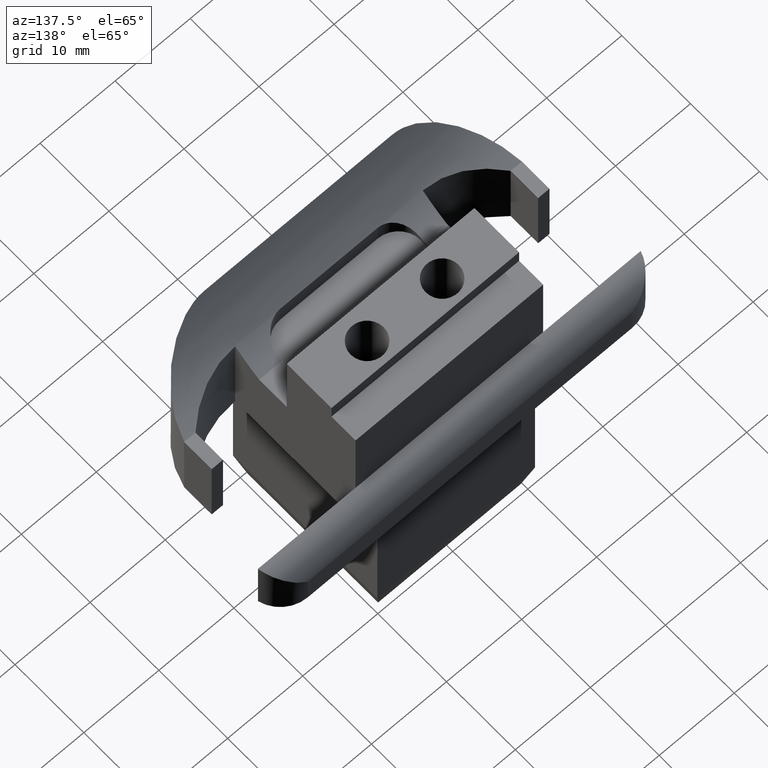
[diagram: clean part render]
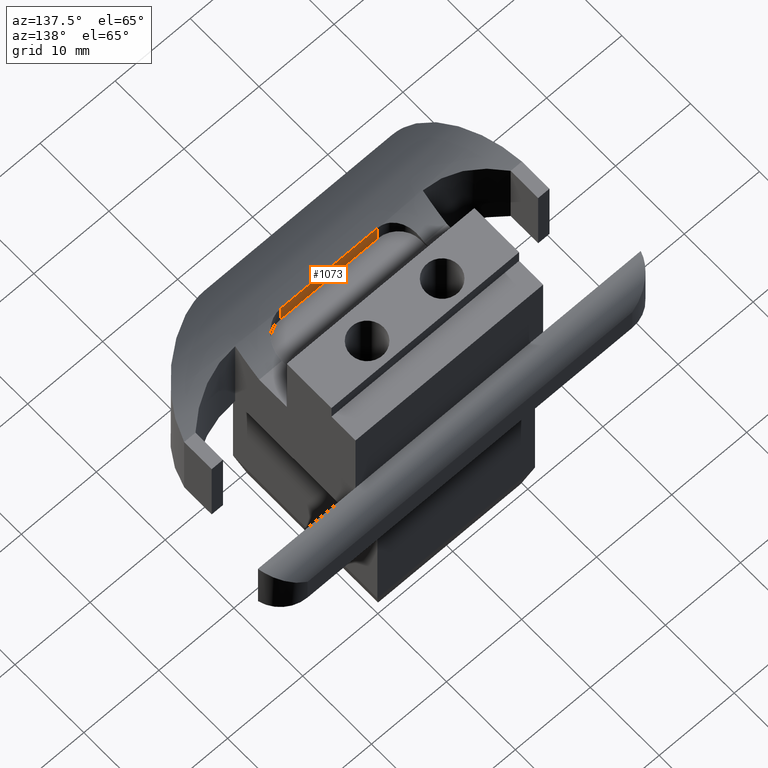
[diagram: same view with one face highlighted and labeled with its STEP entity id]
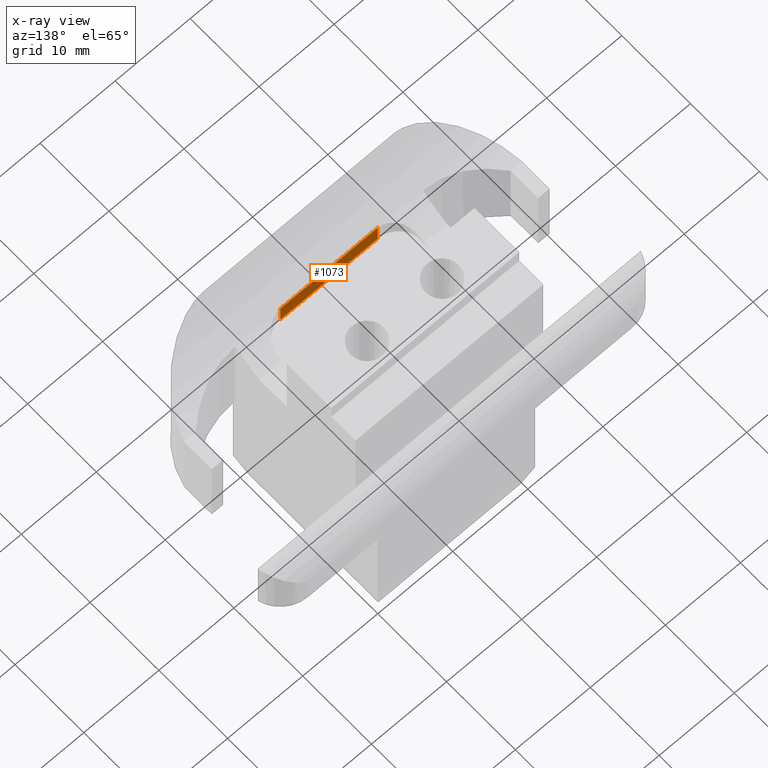
[diagram: x-ray of the same camera — body ghosted, the highlighted face saturated]
A machine part, auxiliary view. The second image highlights one B-rep face of the part: STEP entity #1073.
The next image is the same camera in x-ray: the body ghosted, the highlighted face saturated — about 0% of this face is hidden behind the body in this view.
In plain terms, the highlighted planar face has unit normal (0, -1, 0).
Its self-contained STEP definition (entity closure, byte-faithful):
#101=FACE_OUTER_BOUND('',#166,.T.);
#166=EDGE_LOOP('',(#814,#815,#816,#817));
#252=LINE('',#1628,#372);
#255=LINE('',#1648,#375);
#256=LINE('',#1651,#376);
#257=LINE('',#1652,#377);
#372=VECTOR('',#1322,13.);
#375=VECTOR('',#1333,2.48670835431136);
#376=VECTOR('',#1336,13.);
#377=VECTOR('',#1337,2.48670835431136);
#488=VERTEX_POINT('',#1625);
#489=VERTEX_POINT('',#1627);
#492=VERTEX_POINT('',#1637);
#493=VERTEX_POINT('',#1650);
#606=EDGE_CURVE('',#489,#488,#252,.T.);
#612=EDGE_CURVE('',#492,#488,#255,.T.);
#613=EDGE_CURVE('',#493,#492,#256,.T.);
#614=EDGE_CURVE('',#489,#493,#257,.T.);
#814=ORIENTED_EDGE('',*,*,#612,.F.);
#815=ORIENTED_EDGE('',*,*,#613,.F.);
#816=ORIENTED_EDGE('',*,*,#614,.F.);
#817=ORIENTED_EDGE('',*,*,#606,.T.);
#1024=PLANE('',#1151);
#1073=ADVANCED_FACE('',(#101),#1024,.F.);
#1151=AXIS2_PLACEMENT_3D('',#1649,#1334,#1335);
#1322=DIRECTION('',(-1.,0.,0.));
#1333=DIRECTION('',(0.,0.,-1.));
#1334=DIRECTION('center_axis',(0.,-1.,0.));
#1335=DIRECTION('ref_axis',(-1.,0.,0.));
#1336=DIRECTION('',(-1.,0.,0.));
#1337=DIRECTION('',(0.,0.,1.));
#1625=CARTESIAN_POINT('',(-6.5,-8.,22.));
#1627=CARTESIAN_POINT('',(6.5,-8.,22.));
#1628=CARTESIAN_POINT('',(-9.5,-8.,22.));
#1637=CARTESIAN_POINT('',(-6.5,-8.,24.4867083543114));
#1648=CARTESIAN_POINT('',(-6.5,-8.,32.25));
#1649=CARTESIAN_POINT('Origin',(9.5,-8.,32.25));
#1650=CARTESIAN_POINT('',(6.5,-8.,24.4867083543114));
#1651=CARTESIAN_POINT('',(22.5,-8.,24.4867083543114));
#1652=CARTESIAN_POINT('',(6.5,-8.,32.25));